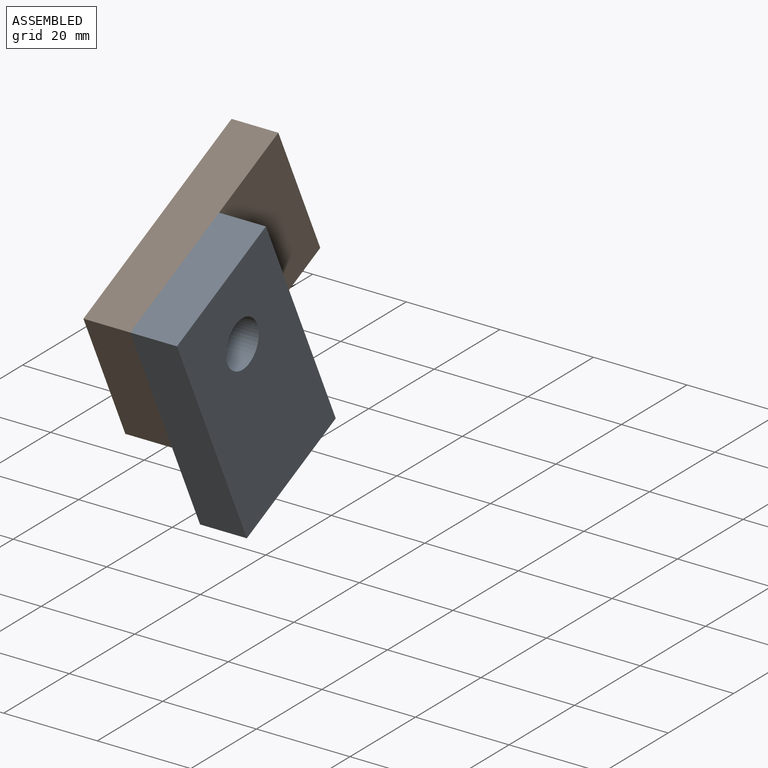
[diagram: assembled view]
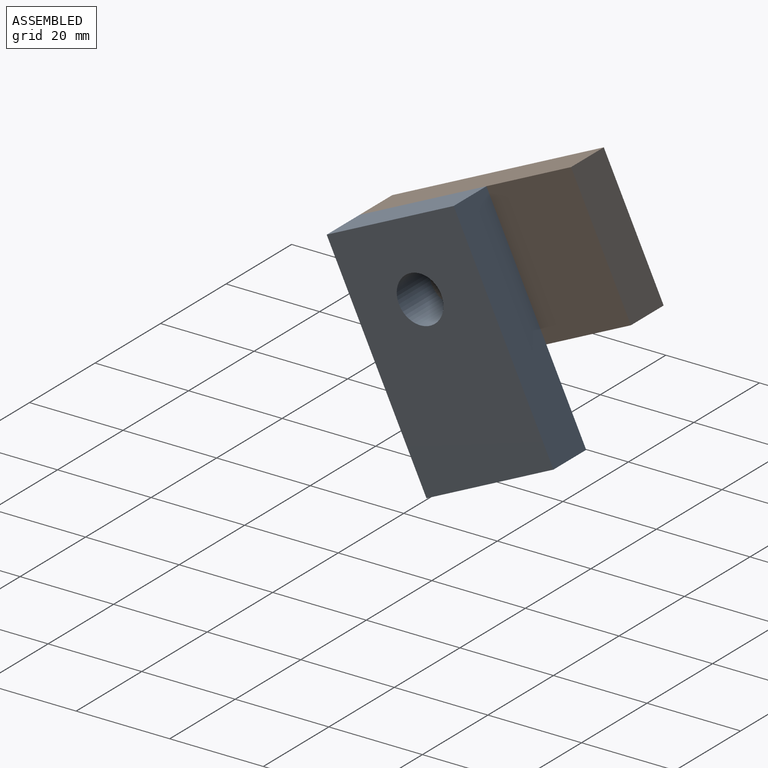
[diagram: assembled view, second angle]
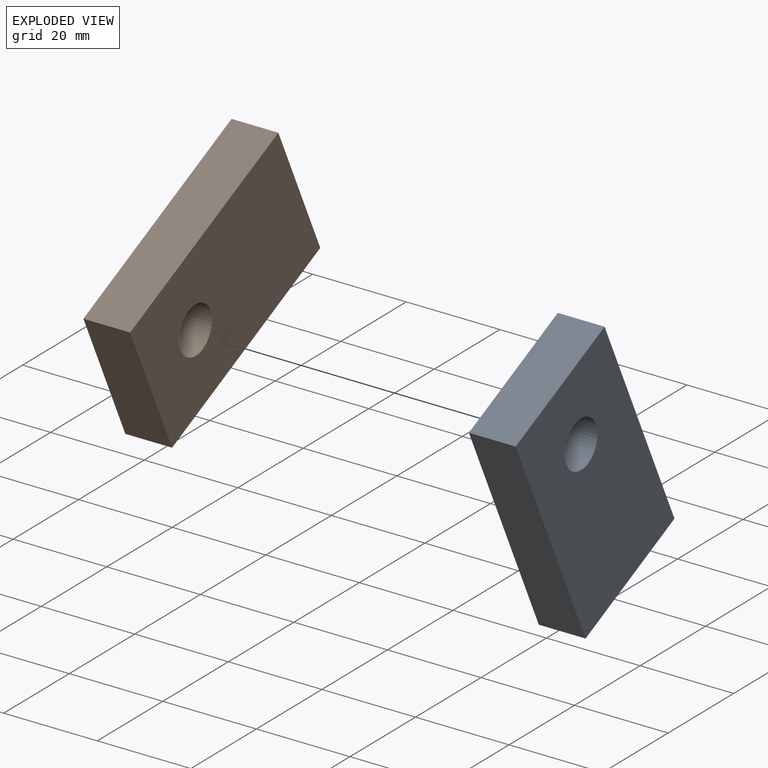
[diagram: exploded view]
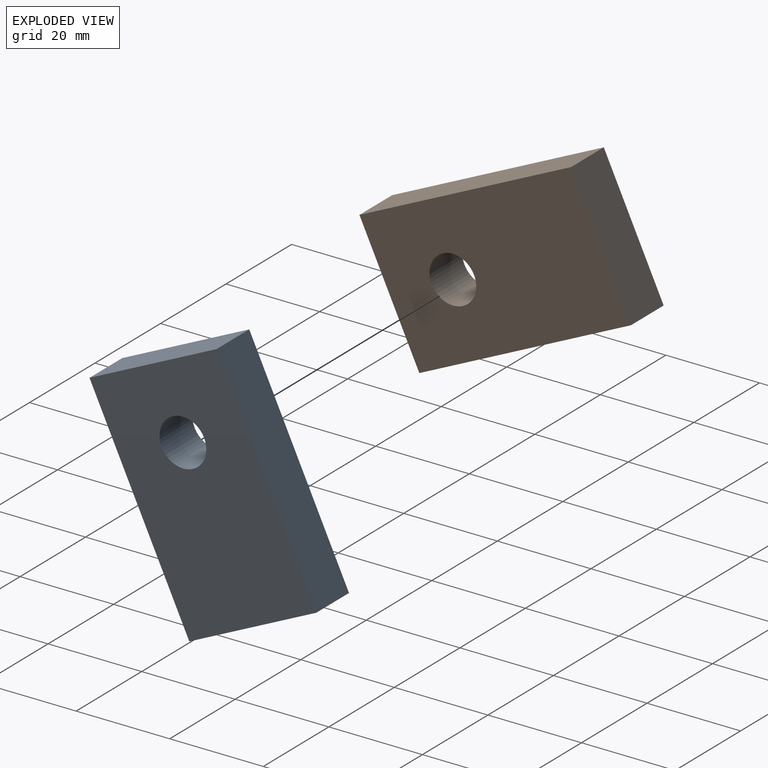
[diagram: exploded view, second angle]
ASSEMBLY  parts=2 mates=2
PART A: 7 faces, bbox 50x10x30 mm
  f0: plane 30x10mm, normal (-1,0,0), area 300mm2, adj f1,f3,f5,f6
  f1: plane 50x10mm, normal (0,0,-1), area 500mm2, adj f0,f2,f5,f6
  f2: plane 30x10mm, normal (1,0,0), area 300mm2, adj f1,f3,f5,f6
  f3: plane 50x10mm, normal (0,0,1), area 500mm2, adj f0,f2,f5,f6
  f4: cylinder r=5mm len=10mm, axis (0,1,0), area 314.2mm2, adj f5,f6
  f5: plane 50x30mm, normal (0,-1,0), area 1421.5mm2, adj f0,f1,f2,f3,f4
  f6: plane 50x30mm, normal (0,1,0), area 1421.5mm2, adj f0,f1,f2,f3,f4
PART B: same geometry as A
PLACE A rot(axis=(0.65,0.65,-0.41),135.5deg) t=(15,7.17,19.97)mm
PLACE B rot(axis=(-0.7,-0.7,-0.16),162.2deg) t=(5,-19.97,7.17)mm
MATE cylindrical A.f4 <-> B.f4  axis (1,0,0) through (15,0,0)mm
MATE planar B.f6 <-> A.f5  axis (1,0,0) through (5,31.66,14.93)mm
